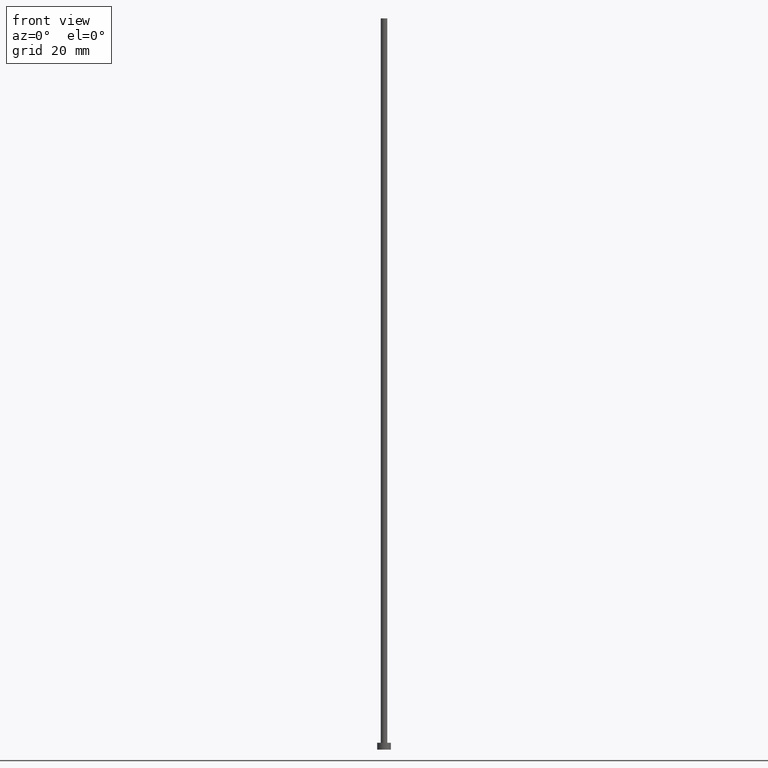
[diagram: clean part render]
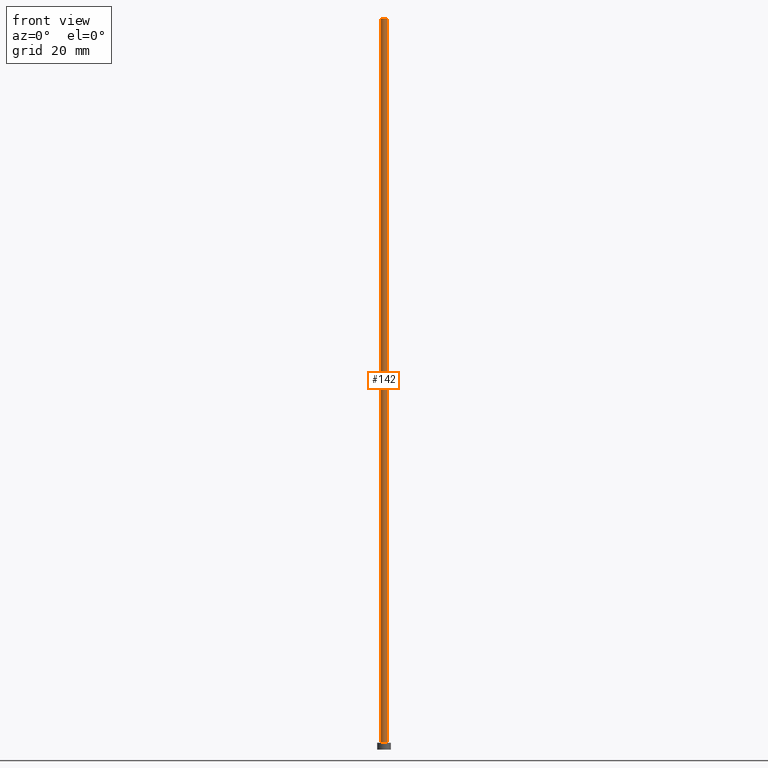
[diagram: same view with one face highlighted and labeled with its STEP entity id]
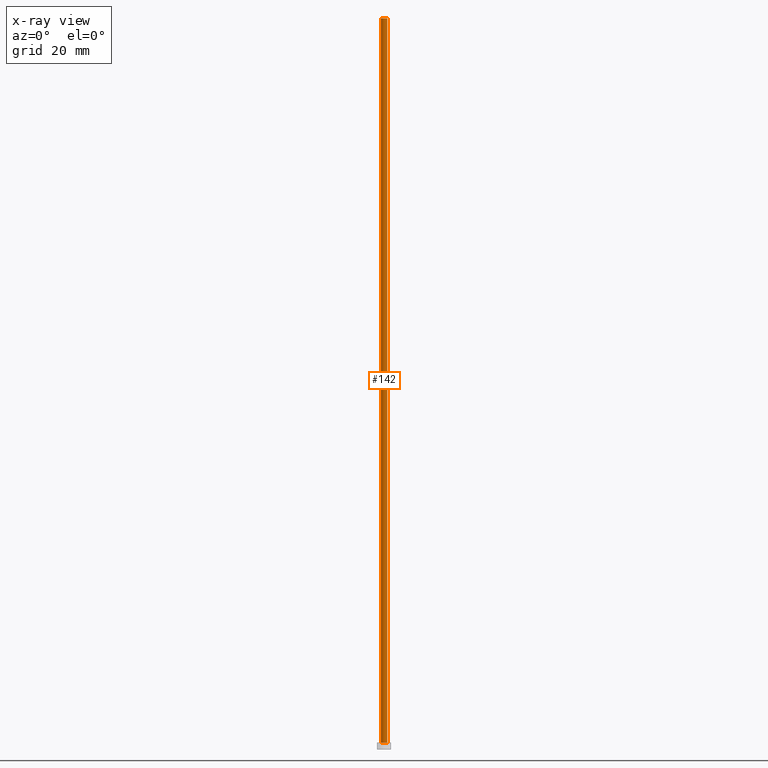
[diagram: x-ray of the same camera — body ghosted, the highlighted face saturated]
A machine part, front view. The second image highlights one B-rep face of the part: STEP entity #142.
The next image is the same camera in x-ray: the body ghosted, the highlighted face saturated — about 0% of this face is hidden behind the body in this view.
In plain terms, the highlighted cylindrical surface (edge-blend (fillet) strip) has radius 0.7 mm, axis along (-0, -0, -1).
Its self-contained STEP definition (entity closure, byte-faithful):
#5 = ORIENTED_EDGE ( 'NONE', *, *, #92, .T. ) ;
#6 = EDGE_CURVE ( 'NONE', #149, #45, #29, .T. ) ;
#8 = DIRECTION ( 'NONE',  ( 0.000000000000000000, 0.000000000000000000, 1.000000000000000000 ) ) ;
#11 = CARTESIAN_POINT ( 'NONE',  ( -0.6999999999999999556, 0.000000000000000000, 160.0000000000000000 ) ) ;
#13 = VERTEX_POINT ( 'NONE', #11 ) ;
#24 = DIRECTION ( 'NONE',  ( -0.000000000000000000, -0.000000000000000000, -1.000000000000000000 ) ) ;
#29 = LINE ( 'NONE', #199, #175 ) ;
#30 = CARTESIAN_POINT ( 'NONE',  ( 0.6999999999999999556, 8.572527594031471957E-17, 160.0000000000000000 ) ) ;
#31 = EDGE_CURVE ( 'NONE', #67, #45, #93, .T. ) ;
#43 = LINE ( 'NONE', #101, #129 ) ;
#44 = DIRECTION ( 'NONE',  ( -0.000000000000000000, -0.000000000000000000, -1.000000000000000000 ) ) ;
#45 = VERTEX_POINT ( 'NONE', #235 ) ;
#46 = DIRECTION ( 'NONE',  ( 0.000000000000000000, 0.000000000000000000, 1.000000000000000000 ) ) ;
#50 = AXIS2_PLACEMENT_3D ( 'NONE', #72, #46, #104 ) ;
#55 = DIRECTION ( 'NONE',  ( -0.000000000000000000, -0.000000000000000000, -1.000000000000000000 ) ) ;
#67 = VERTEX_POINT ( 'NONE', #194 ) ;
#72 = CARTESIAN_POINT ( 'NONE',  ( 0.000000000000000000, 0.000000000000000000, 1.500000000000000000 ) ) ;
#79 = EDGE_LOOP ( 'NONE', ( #125, #128, #5, #166 ) ) ;
#92 = EDGE_CURVE ( 'NONE', #13, #67, #43, .T. ) ;
#93 = CIRCLE ( 'NONE', #50, 0.6999999999999999556 ) ;
#101 = CARTESIAN_POINT ( 'NONE',  ( -0.6999999999999999556, 0.000000000000000000, 160.0000000000000000 ) ) ;
#104 = DIRECTION ( 'NONE',  ( 1.000000000000000000, 0.000000000000000000, 0.000000000000000000 ) ) ;
#109 = EDGE_CURVE ( 'NONE', #13, #149, #164, .T. ) ;
#117 = CYLINDRICAL_SURFACE ( 'NONE', #233, 0.6999999999999999556 ) ;
#125 = ORIENTED_EDGE ( 'NONE', *, *, #6, .F. ) ;
#128 = ORIENTED_EDGE ( 'NONE', *, *, #109, .F. ) ;
#129 = VECTOR ( 'NONE', #24, 1000.000000000000000 ) ;
#141 = FACE_OUTER_BOUND ( 'NONE', #79, .T. ) ;
#142 = ADVANCED_FACE ( 'NONE', ( #141 ), #117, .T. ) ;
#149 = VERTEX_POINT ( 'NONE', #30 ) ;
#164 = CIRCLE ( 'NONE', #226, 0.6999999999999999556 ) ;
#166 = ORIENTED_EDGE ( 'NONE', *, *, #31, .T. ) ;
#175 = VECTOR ( 'NONE', #44, 1000.000000000000000 ) ;
#189 = DIRECTION ( 'NONE',  ( -1.000000000000000000, 0.000000000000000000, 0.000000000000000000 ) ) ;
#194 = CARTESIAN_POINT ( 'NONE',  ( -0.6999999999999999556, 0.000000000000000000, 1.500000000000000000 ) ) ;
#199 = CARTESIAN_POINT ( 'NONE',  ( 0.6999999999999999556, 8.572527594031471957E-17, 160.0000000000000000 ) ) ;
#214 = CARTESIAN_POINT ( 'NONE',  ( 0.000000000000000000, 0.000000000000000000, 160.0000000000000000 ) ) ;
#225 = CARTESIAN_POINT ( 'NONE',  ( 0.000000000000000000, 0.000000000000000000, 160.0000000000000000 ) ) ;
#226 = AXIS2_PLACEMENT_3D ( 'NONE', #225, #8, #236 ) ;
#233 = AXIS2_PLACEMENT_3D ( 'NONE', #214, #55, #189 ) ;
#235 = CARTESIAN_POINT ( 'NONE',  ( 0.6999999999999999556, 8.572527594031471957E-17, 1.500000000000000000 ) ) ;
#236 = DIRECTION ( 'NONE',  ( 1.000000000000000000, 0.000000000000000000, 0.000000000000000000 ) ) ;